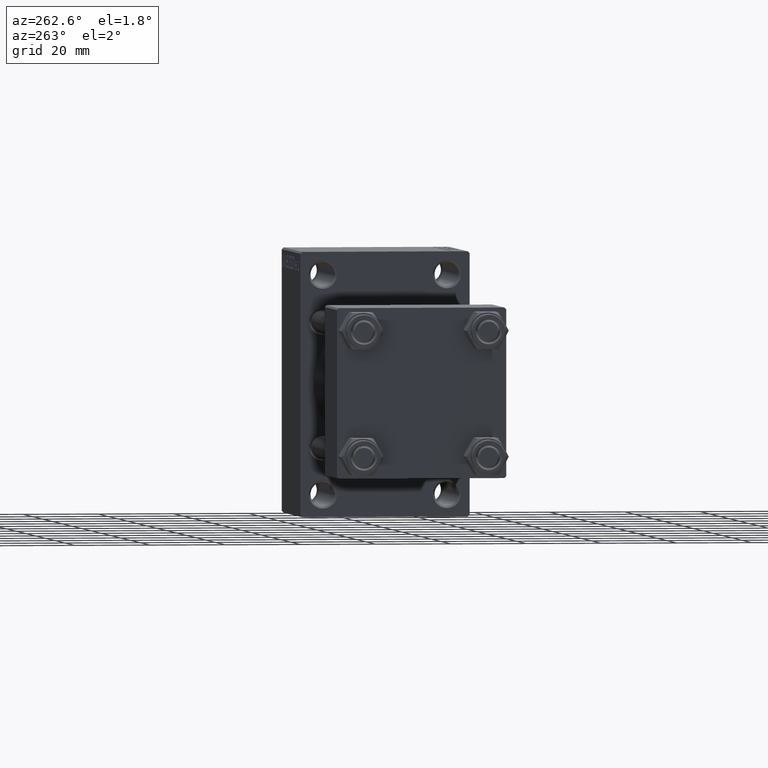
[diagram: clean part render]
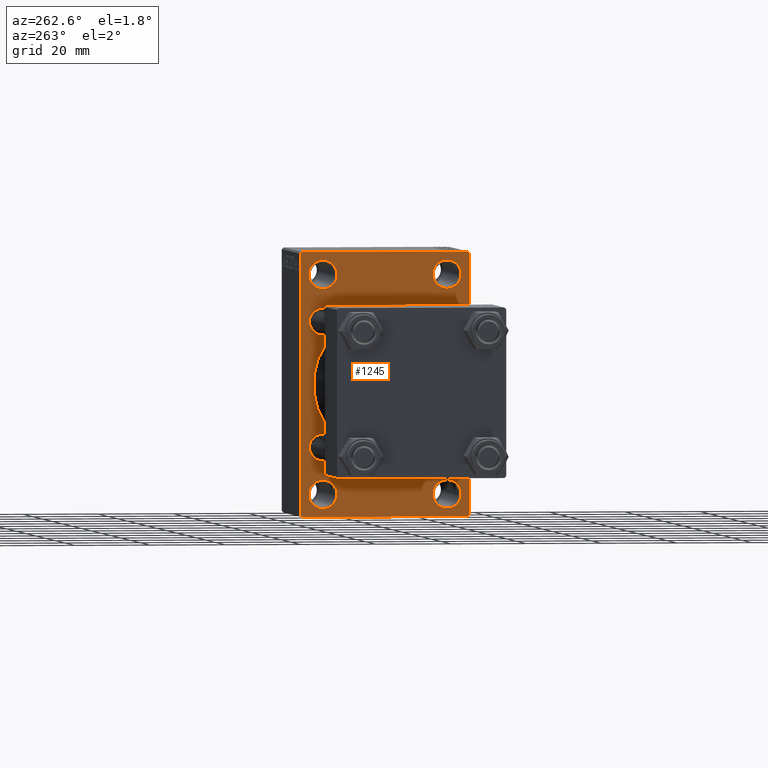
[diagram: same view with one face highlighted and labeled with its STEP entity id]
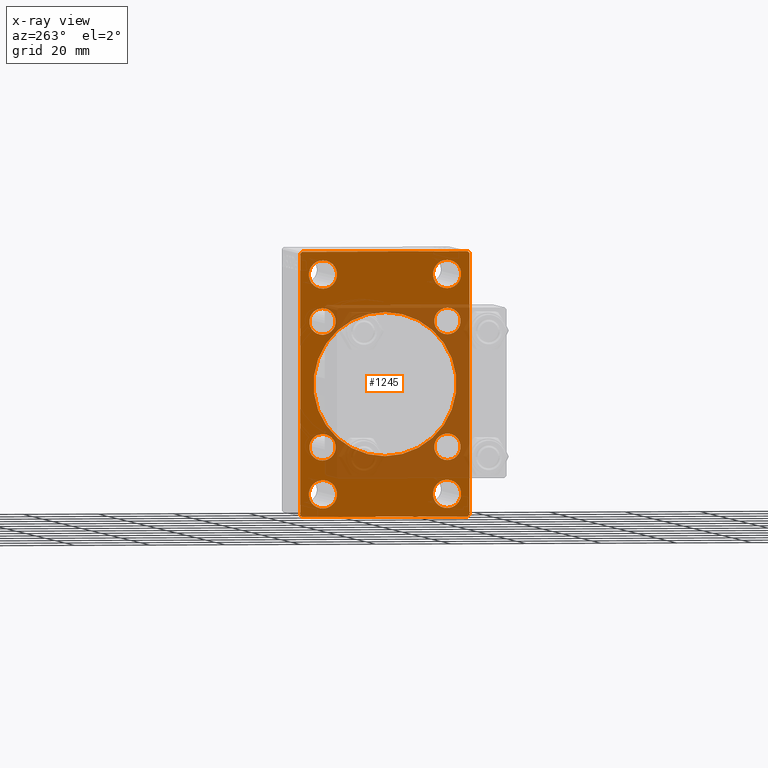
[diagram: x-ray of the same camera — body ghosted, the highlighted face saturated]
A machine part, auxiliary view. The second image highlights one B-rep face of the part: STEP entity #1245.
The next image is the same camera in x-ray: the body ghosted, the highlighted face saturated — about 34% of this face is hidden behind the body in this view.
In plain terms, the highlighted planar face has unit normal (-1, 0, 0).
Its self-contained STEP definition (entity closure, byte-faithful):
#228 = CARTESIAN_POINT ( 'NONE',  ( 75.00000000000001421, 16.59999999999999787, 20.10000000000001208 ) ) ;
#264 = DIRECTION ( 'NONE',  ( -0.000000000000000000, -0.7071067811865474617, -0.7071067811865474617 ) ) ;
#266 = CARTESIAN_POINT ( 'NONE',  ( 75.00000000000001421, 16.50000000000000000, -28.99999999999999289 ) ) ;
#598 = DIRECTION ( 'NONE',  ( 0.000000000000000000, -1.000000000000000000, 0.000000000000000000 ) ) ;
#811 = ORIENTED_EDGE ( 'NONE', *, *, #3613, .T. ) ;
#905 = AXIS2_PLACEMENT_3D ( 'NONE', #1451, #16111, #41896 ) ;
#1245 = ADVANCED_FACE ( 'NONE', ( #13981, #25061, #6762, #21441, #36151, #27950, #32521, #16860, #32036, #47203 ), #28909, .T. ) ;
#1375 = AXIS2_PLACEMENT_3D ( 'NONE', #19363, #14806, #26363 ) ;
#1451 = CARTESIAN_POINT ( 'NONE',  ( 75.00000000000001421, -16.50000000000000000, 29.00000000000000711 ) ) ;
#1628 = LINE ( 'NONE', #1857, #8625 ) ;
#1831 = DIRECTION ( 'NONE',  ( 1.000000000000000000, 0.000000000000000000, 0.000000000000000000 ) ) ;
#1847 = CIRCLE ( 'NONE', #28751, 3.749999999999937383 ) ;
#1857 = CARTESIAN_POINT ( 'NONE',  ( 75.00000000000001421, 28.49999999999999645, 28.49999999999999645 ) ) ;
#2247 = DIRECTION ( 'NONE',  ( 0.000000000000000000, 0.000000000000000000, 1.000000000000000000 ) ) ;
#2356 = VERTEX_POINT ( 'NONE', #38904 ) ;
#2430 = CIRCLE ( 'NONE', #41663, 19.00000000000000000 ) ;
#2437 = DIRECTION ( 'NONE',  ( 0.000000000000000000, 0.000000000000000000, 1.000000000000000000 ) ) ;
#2486 = CARTESIAN_POINT ( 'NONE',  ( 75.00000000000001421, 22.49999999999999645, 35.00000000000000000 ) ) ;
#2604 = EDGE_CURVE ( 'NONE', #18570, #15373, #40581, .T. ) ;
#2770 = VECTOR ( 'NONE', #264, 1000.000000000000114 ) ;
#2883 = EDGE_CURVE ( 'NONE', #15996, #15651, #41465, .T. ) ;
#3613 = EDGE_CURVE ( 'NONE', #22118, #9912, #26305, .T. ) ;
#3680 = CIRCLE ( 'NONE', #1375, 3.500000000000006661 ) ;
#3916 = EDGE_CURVE ( 'NONE', #9912, #18570, #19242, .T. ) ;
#4127 = CARTESIAN_POINT ( 'NONE',  ( 75.00000000000001421, 22.49999999999999645, -34.50000000000000000 ) ) ;
#4261 = ORIENTED_EDGE ( 'NONE', *, *, #30023, .T. ) ;
#5100 = EDGE_CURVE ( 'NONE', #35024, #2356, #11280, .T. ) ;
#5238 = CARTESIAN_POINT ( 'NONE',  ( 75.00000000000001421, -16.59999999999999076, 13.10000000000000142 ) ) ;
#5247 = VERTEX_POINT ( 'NONE', #41260 ) ;
#5623 = CARTESIAN_POINT ( 'NONE',  ( 75.00000000000001421, 16.59999999999999787, -13.09999999999999787 ) ) ;
#6161 = DIRECTION ( 'NONE',  ( 1.000000000000000000, 0.000000000000000000, 0.000000000000000000 ) ) ;
#6168 = AXIS2_PLACEMENT_3D ( 'NONE', #16022, #30259, #44953 ) ;
#6762 = FACE_BOUND ( 'NONE', #11535, .T. ) ;
#7007 = AXIS2_PLACEMENT_3D ( 'NONE', #13489, #40009, #2437 ) ;
#7314 = EDGE_CURVE ( 'NONE', #45770, #16174, #3680, .T. ) ;
#7319 = EDGE_LOOP ( 'NONE', ( #18221, #23261 ) ) ;
#7339 = CARTESIAN_POINT ( 'NONE',  ( 75.00000000000001421, 16.50000000000000000, -32.74999999999992895 ) ) ;
#7740 = VERTEX_POINT ( 'NONE', #9181 ) ;
#7882 = EDGE_CURVE ( 'NONE', #43133, #26696, #26732, .T. ) ;
#8410 = DIRECTION ( 'NONE',  ( 0.000000000000000000, 0.000000000000000000, 1.000000000000000000 ) ) ;
#8625 = VECTOR ( 'NONE', #16521, 1000.000000000000114 ) ;
#9120 = DIRECTION ( 'NONE',  ( 1.000000000000000000, 0.000000000000000000, 0.000000000000000000 ) ) ;
#9181 = CARTESIAN_POINT ( 'NONE',  ( 75.00000000000001421, -22.50000000000000355, -34.49999999999997158 ) ) ;
#9197 = AXIS2_PLACEMENT_3D ( 'NONE', #36864, #14927, #37341 ) ;
#9912 = VERTEX_POINT ( 'NONE', #4127 ) ;
#10433 = DIRECTION ( 'NONE',  ( 0.000000000000000000, 0.000000000000000000, 1.000000000000000000 ) ) ;
#10655 = LINE ( 'NONE', #2486, #26418 ) ;
#11280 = CIRCLE ( 'NONE', #22056, 3.500000000000006661 ) ;
#11535 = EDGE_LOOP ( 'NONE', ( #34118, #28916 ) ) ;
#11565 = DIRECTION ( 'NONE',  ( 1.000000000000000000, 0.000000000000000000, 0.000000000000000000 ) ) ;
#11679 = ORIENTED_EDGE ( 'NONE', *, *, #19900, .T. ) ;
#11725 = ORIENTED_EDGE ( 'NONE', *, *, #30452, .T. ) ;
#11875 = ORIENTED_EDGE ( 'NONE', *, *, #7314, .T. ) ;
#11877 = CARTESIAN_POINT ( 'NONE',  ( 75.00000000000001421, -22.50000000000000355, 34.50000000000000000 ) ) ;
#12318 = DIRECTION ( 'NONE',  ( 0.000000000000000000, 0.000000000000000000, -1.000000000000000000 ) ) ;
#12769 = CARTESIAN_POINT ( 'NONE',  ( 75.00000000000001421, -22.50000000000000355, 35.00000000000000000 ) ) ;
#13263 = DIRECTION ( 'NONE',  ( -1.000000000000000000, 0.000000000000000000, -0.000000000000000000 ) ) ;
#13489 = CARTESIAN_POINT ( 'NONE',  ( 75.00000000000001421, 16.50000000000000000, -28.99999999999999289 ) ) ;
#13666 = CARTESIAN_POINT ( 'NONE',  ( 75.00000000000001421, -16.50000000000000000, -25.25000000000005684 ) ) ;
#13681 = ORIENTED_EDGE ( 'NONE', *, *, #28047, .T. ) ;
#13867 = DIRECTION ( 'NONE',  ( 0.000000000000000000, 0.000000000000000000, 1.000000000000000000 ) ) ;
#13897 = CIRCLE ( 'NONE', #7007, 3.749999999999937383 ) ;
#13981 = FACE_BOUND ( 'NONE', #35922, .T. ) ;
#14040 = DIRECTION ( 'NONE',  ( 1.000000000000000000, 0.000000000000000000, 0.000000000000000000 ) ) ;
#14484 = ORIENTED_EDGE ( 'NONE', *, *, #43226, .T. ) ;
#14560 = AXIS2_PLACEMENT_3D ( 'NONE', #45192, #41824, #16918 ) ;
#14806 = DIRECTION ( 'NONE',  ( 1.000000000000000000, 0.000000000000000000, 0.000000000000000000 ) ) ;
#14927 = DIRECTION ( 'NONE',  ( 1.000000000000000000, 0.000000000000000000, 0.000000000000000000 ) ) ;
#15057 = CARTESIAN_POINT ( 'NONE',  ( 75.00000000000001421, -16.59999999999999076, -20.10000000000001208 ) ) ;
#15360 = EDGE_CURVE ( 'NONE', #15373, #7740, #46605, .T. ) ;
#15373 = VERTEX_POINT ( 'NONE', #27836 ) ;
#15645 = CIRCLE ( 'NONE', #39528, 3.500000000000006661 ) ;
#15651 = VERTEX_POINT ( 'NONE', #41781 ) ;
#15831 = CARTESIAN_POINT ( 'NONE',  ( 75.00000000000001421, -2.752562955852396712E-16, -19.00000000000000000 ) ) ;
#15996 = VERTEX_POINT ( 'NONE', #11877 ) ;
#16022 = CARTESIAN_POINT ( 'NONE',  ( 75.00000000000001421, 16.50000000000000000, 29.00000000000000355 ) ) ;
#16111 = DIRECTION ( 'NONE',  ( 1.000000000000000000, 0.000000000000000000, 0.000000000000000000 ) ) ;
#16141 = VERTEX_POINT ( 'NONE', #21871 ) ;
#16174 = VERTEX_POINT ( 'NONE', #228 ) ;
#16190 = VERTEX_POINT ( 'NONE', #5238 ) ;
#16521 = DIRECTION ( 'NONE',  ( 0.000000000000000000, 0.7071067811865474617, -0.7071067811865474617 ) ) ;
#16739 = CIRCLE ( 'NONE', #43687, 3.500000000000006661 ) ;
#16799 = ORIENTED_EDGE ( 'NONE', *, *, #33806, .T. ) ;
#16824 = EDGE_LOOP ( 'NONE', ( #14484, #27433 ) ) ;
#16860 = FACE_BOUND ( 'NONE', #16824, .T. ) ;
#16918 = DIRECTION ( 'NONE',  ( 0.000000000000000000, 0.000000000000000000, 1.000000000000000000 ) ) ;
#17146 = CARTESIAN_POINT ( 'NONE',  ( 75.00000000000001421, -16.50000000000000000, -28.99999999999999289 ) ) ;
#17249 = ORIENTED_EDGE ( 'NONE', *, *, #25437, .T. ) ;
#17534 = EDGE_LOOP ( 'NONE', ( #16799, #11875 ) ) ;
#17703 = DIRECTION ( 'NONE',  ( 0.000000000000000000, 0.000000000000000000, -1.000000000000000000 ) ) ;
#18025 = VERTEX_POINT ( 'NONE', #46739 ) ;
#18221 = ORIENTED_EDGE ( 'NONE', *, *, #41376, .T. ) ;
#18566 = DIRECTION ( 'NONE',  ( 1.000000000000000000, 0.000000000000000000, 0.000000000000000000 ) ) ;
#18570 = VERTEX_POINT ( 'NONE', #34642 ) ;
#18730 = VERTEX_POINT ( 'NONE', #15831 ) ;
#18873 = CARTESIAN_POINT ( 'NONE',  ( 75.00000000000001421, 22.49999999999999645, -35.00000000000000000 ) ) ;
#18929 = CARTESIAN_POINT ( 'NONE',  ( 75.00000000000001421, -16.50000000000000000, 32.74999999999993605 ) ) ;
#19242 = LINE ( 'NONE', #29623, #2770 ) ;
#19271 = ORIENTED_EDGE ( 'NONE', *, *, #41290, .T. ) ;
#19363 = CARTESIAN_POINT ( 'NONE',  ( 75.00000000000001421, 16.59999999999999787, 16.60000000000000497 ) ) ;
#19609 = VECTOR ( 'NONE', #598, 1000.000000000000000 ) ;
#19900 = EDGE_CURVE ( 'NONE', #18025, #18730, #27443, .T. ) ;
#20322 = DIRECTION ( 'NONE',  ( 0.000000000000000000, 0.000000000000000000, 1.000000000000000000 ) ) ;
#20421 = VECTOR ( 'NONE', #41006, 1000.000000000000000 ) ;
#20529 = DIRECTION ( 'NONE',  ( 1.000000000000000000, 0.000000000000000000, 0.000000000000000000 ) ) ;
#20536 = EDGE_CURVE ( 'NONE', #15996, #7740, #26757, .T. ) ;
#20770 = CIRCLE ( 'NONE', #6168, 3.749999999999933831 ) ;
#21027 = CARTESIAN_POINT ( 'NONE',  ( 75.00000000000001421, -16.59999999999999076, -16.60000000000000853 ) ) ;
#21441 = FACE_BOUND ( 'NONE', #33577, .T. ) ;
#21871 = CARTESIAN_POINT ( 'NONE',  ( 75.00000000000001421, 16.50000000000000000, 32.74999999999992895 ) ) ;
#22021 = EDGE_CURVE ( 'NONE', #5247, #24911, #16739, .T. ) ;
#22056 = AXIS2_PLACEMENT_3D ( 'NONE', #21027, #35738, #20322 ) ;
#22118 = VERTEX_POINT ( 'NONE', #25906 ) ;
#22394 = DIRECTION ( 'NONE',  ( 1.000000000000000000, 0.000000000000000000, 0.000000000000000000 ) ) ;
#22764 = VERTEX_POINT ( 'NONE', #43867 ) ;
#23261 = ORIENTED_EDGE ( 'NONE', *, *, #7882, .T. ) ;
#23911 = CARTESIAN_POINT ( 'NONE',  ( 75.00000000000001421, 16.59999999999999787, -16.60000000000000497 ) ) ;
#24140 = VERTEX_POINT ( 'NONE', #42683 ) ;
#24911 = VERTEX_POINT ( 'NONE', #5623 ) ;
#25061 = FACE_BOUND ( 'NONE', #7319, .T. ) ;
#25185 = DIRECTION ( 'NONE',  ( 1.000000000000000000, 0.000000000000000000, 0.000000000000000000 ) ) ;
#25360 = CIRCLE ( 'NONE', #9197, 3.500000000000003109 ) ;
#25437 = EDGE_CURVE ( 'NONE', #37837, #16190, #25360, .T. ) ;
#25532 = DIRECTION ( 'NONE',  ( 0.000000000000000000, 0.000000000000000000, 1.000000000000000000 ) ) ;
#25665 = CARTESIAN_POINT ( 'NONE',  ( 75.00000000000001421, 16.59999999999999787, 16.60000000000000497 ) ) ;
#25751 = AXIS2_PLACEMENT_3D ( 'NONE', #31569, #13263, #42643 ) ;
#25906 = CARTESIAN_POINT ( 'NONE',  ( 75.00000000000001421, 22.49999999999999645, 34.50000000000000000 ) ) ;
#26033 = DIRECTION ( 'NONE',  ( 0.000000000000000000, 0.000000000000000000, 1.000000000000000000 ) ) ;
#26305 = LINE ( 'NONE', #34240, #20421 ) ;
#26363 = DIRECTION ( 'NONE',  ( 0.000000000000000000, 0.000000000000000000, 1.000000000000000000 ) ) ;
#26418 = VECTOR ( 'NONE', #40060, 1000.000000000000000 ) ;
#26491 = CIRCLE ( 'NONE', #30335, 3.500000000000006661 ) ;
#26696 = VERTEX_POINT ( 'NONE', #13666 ) ;
#26703 = CARTESIAN_POINT ( 'NONE',  ( 75.00000000000001421, -16.50000000000000000, 29.00000000000000711 ) ) ;
#26732 = CIRCLE ( 'NONE', #42097, 3.749999999999937383 ) ;
#26757 = LINE ( 'NONE', #12769, #31334 ) ;
#27199 = AXIS2_PLACEMENT_3D ( 'NONE', #17146, #31846, #43413 ) ;
#27433 = ORIENTED_EDGE ( 'NONE', *, *, #5100, .T. ) ;
#27443 = CIRCLE ( 'NONE', #35158, 19.00000000000000000 ) ;
#27594 = DIRECTION ( 'NONE',  ( 0.000000000000000000, -0.7071067811865376918, 0.7071067811865574537 ) ) ;
#27610 = CIRCLE ( 'NONE', #14560, 3.500000000000003109 ) ;
#27836 = CARTESIAN_POINT ( 'NONE',  ( 75.00000000000001421, -21.99999999999997513, -35.00000000000000000 ) ) ;
#27950 = FACE_BOUND ( 'NONE', #17534, .T. ) ;
#28047 = EDGE_CURVE ( 'NONE', #16190, #37837, #27610, .T. ) ;
#28199 = EDGE_LOOP ( 'NONE', ( #17249, #13681 ) ) ;
#28436 = CIRCLE ( 'NONE', #40817, 3.749999999999930278 ) ;
#28543 = CIRCLE ( 'NONE', #905, 3.749999999999930278 ) ;
#28732 = CARTESIAN_POINT ( 'NONE',  ( 75.00000000000001421, -16.59999999999999076, -16.60000000000000853 ) ) ;
#28751 = AXIS2_PLACEMENT_3D ( 'NONE', #266, #22394, #25532 ) ;
#28909 = PLANE ( 'NONE',  #25751 ) ;
#28916 = ORIENTED_EDGE ( 'NONE', *, *, #38680, .T. ) ;
#29283 = DIRECTION ( 'NONE',  ( 0.000000000000000000, 0.000000000000000000, 1.000000000000000000 ) ) ;
#29623 = CARTESIAN_POINT ( 'NONE',  ( 75.00000000000001421, 28.49999999999999645, -28.49999999999999645 ) ) ;
#30023 = EDGE_CURVE ( 'NONE', #16141, #24140, #20770, .T. ) ;
#30259 = DIRECTION ( 'NONE',  ( 1.000000000000000000, 0.000000000000000000, 0.000000000000000000 ) ) ;
#30335 = AXIS2_PLACEMENT_3D ( 'NONE', #28732, #14040, #10433 ) ;
#30452 = EDGE_CURVE ( 'NONE', #45223, #34052, #28436, .T. ) ;
#30811 = CARTESIAN_POINT ( 'NONE',  ( 75.00000000000001421, -16.50000000000000000, -28.99999999999999289 ) ) ;
#30927 = AXIS2_PLACEMENT_3D ( 'NONE', #25665, #40377, #29283 ) ;
#31334 = VECTOR ( 'NONE', #12318, 1000.000000000000000 ) ;
#31366 = CARTESIAN_POINT ( 'NONE',  ( 75.00000000000001421, -16.59999999999999076, 20.10000000000001208 ) ) ;
#31569 = CARTESIAN_POINT ( 'NONE',  ( 75.00000000000001421, 0.000000000000000000, 0.000000000000000000 ) ) ;
#31846 = DIRECTION ( 'NONE',  ( 1.000000000000000000, 0.000000000000000000, 0.000000000000000000 ) ) ;
#32036 = FACE_BOUND ( 'NONE', #37772, .T. ) ;
#32315 = EDGE_CURVE ( 'NONE', #22764, #37593, #13897, .T. ) ;
#32521 = FACE_BOUND ( 'NONE', #36668, .T. ) ;
#32886 = EDGE_CURVE ( 'NONE', #18730, #18025, #2430, .T. ) ;
#33498 = EDGE_CURVE ( 'NONE', #34052, #45223, #28543, .T. ) ;
#33577 = EDGE_LOOP ( 'NONE', ( #4261, #39453 ) ) ;
#33709 = EDGE_CURVE ( 'NONE', #34602, #22118, #1628, .T. ) ;
#33806 = EDGE_CURVE ( 'NONE', #16174, #45770, #39400, .T. ) ;
#34052 = VERTEX_POINT ( 'NONE', #36219 ) ;
#34118 = ORIENTED_EDGE ( 'NONE', *, *, #32315, .T. ) ;
#34240 = CARTESIAN_POINT ( 'NONE',  ( 75.00000000000001421, 22.49999999999999645, 35.00000000000000000 ) ) ;
#34272 = VECTOR ( 'NONE', #37616, 1000.000000000000114 ) ;
#34602 = VERTEX_POINT ( 'NONE', #39899 ) ;
#34642 = CARTESIAN_POINT ( 'NONE',  ( 75.00000000000001421, 21.99999999999999645, -35.00000000000000000 ) ) ;
#34794 = CARTESIAN_POINT ( 'NONE',  ( 75.00000000000001421, -16.50000000000000000, -32.74999999999992895 ) ) ;
#35024 = VERTEX_POINT ( 'NONE', #15057 ) ;
#35157 = ORIENTED_EDGE ( 'NONE', *, *, #41345, .F. ) ;
#35158 = AXIS2_PLACEMENT_3D ( 'NONE', #38440, #1831, #43223 ) ;
#35454 = ORIENTED_EDGE ( 'NONE', *, *, #22021, .T. ) ;
#35704 = EDGE_CURVE ( 'NONE', #24140, #16141, #40956, .T. ) ;
#35738 = DIRECTION ( 'NONE',  ( 1.000000000000000000, 0.000000000000000000, 0.000000000000000000 ) ) ;
#35922 = EDGE_LOOP ( 'NONE', ( #11725, #41094 ) ) ;
#36151 = FACE_BOUND ( 'NONE', #28199, .T. ) ;
#36170 = CARTESIAN_POINT ( 'NONE',  ( 75.00000000000001421, 16.50000000000000000, 29.00000000000000355 ) ) ;
#36219 = CARTESIAN_POINT ( 'NONE',  ( 75.00000000000001421, -16.50000000000000000, 25.25000000000007816 ) ) ;
#36668 = EDGE_LOOP ( 'NONE', ( #19271, #35454 ) ) ;
#36864 = CARTESIAN_POINT ( 'NONE',  ( 75.00000000000001421, -16.59999999999999076, 16.60000000000000853 ) ) ;
#37155 = CARTESIAN_POINT ( 'NONE',  ( 75.00000000000001421, -28.49999999999999645, 28.49999999999999645 ) ) ;
#37341 = DIRECTION ( 'NONE',  ( 0.000000000000000000, 0.000000000000000000, 1.000000000000000000 ) ) ;
#37593 = VERTEX_POINT ( 'NONE', #7339 ) ;
#37616 = DIRECTION ( 'NONE',  ( -0.000000000000000000, 0.7071067811865474617, 0.7071067811865474617 ) ) ;
#37618 = CARTESIAN_POINT ( 'NONE',  ( 75.00000000000001421, 16.59999999999999787, 13.09999999999999609 ) ) ;
#37772 = EDGE_LOOP ( 'NONE', ( #11679, #45123 ) ) ;
#37837 = VERTEX_POINT ( 'NONE', #31366 ) ;
#38391 = VECTOR ( 'NONE', #27594, 999.9999999999998863 ) ;
#38440 = CARTESIAN_POINT ( 'NONE',  ( 75.00000000000001421, -2.602085213965210642E-15, 0.000000000000000000 ) ) ;
#38680 = EDGE_CURVE ( 'NONE', #37593, #22764, #1847, .T. ) ;
#38904 = CARTESIAN_POINT ( 'NONE',  ( 75.00000000000001421, -16.59999999999999076, -13.10000000000000142 ) ) ;
#39400 = CIRCLE ( 'NONE', #30927, 3.500000000000006661 ) ;
#39453 = ORIENTED_EDGE ( 'NONE', *, *, #35704, .T. ) ;
#39495 = CIRCLE ( 'NONE', #27199, 3.749999999999937383 ) ;
#39528 = AXIS2_PLACEMENT_3D ( 'NONE', #23911, #20529, #2247 ) ;
#39646 = CARTESIAN_POINT ( 'NONE',  ( 75.00000000000001421, -2.602085213965210642E-15, 0.000000000000000000 ) ) ;
#39658 = CARTESIAN_POINT ( 'NONE',  ( 75.00000000000001421, 16.59999999999999787, -16.60000000000000497 ) ) ;
#39899 = CARTESIAN_POINT ( 'NONE',  ( 75.00000000000001421, 21.99999999999999645, 35.00000000000000000 ) ) ;
#40009 = DIRECTION ( 'NONE',  ( 1.000000000000000000, 0.000000000000000000, 0.000000000000000000 ) ) ;
#40060 = DIRECTION ( 'NONE',  ( 0.000000000000000000, -1.000000000000000000, 0.000000000000000000 ) ) ;
#40377 = DIRECTION ( 'NONE',  ( 1.000000000000000000, 0.000000000000000000, 0.000000000000000000 ) ) ;
#40581 = LINE ( 'NONE', #18873, #19609 ) ;
#40817 = AXIS2_PLACEMENT_3D ( 'NONE', #26703, #11565, #8410 ) ;
#40915 = ORIENTED_EDGE ( 'NONE', *, *, #2604, .T. ) ;
#40956 = CIRCLE ( 'NONE', #47069, 3.749999999999933831 ) ;
#41006 = DIRECTION ( 'NONE',  ( 0.000000000000000000, 0.000000000000000000, -1.000000000000000000 ) ) ;
#41094 = ORIENTED_EDGE ( 'NONE', *, *, #33498, .T. ) ;
#41260 = CARTESIAN_POINT ( 'NONE',  ( 75.00000000000001421, 16.59999999999999787, -20.10000000000000853 ) ) ;
#41290 = EDGE_CURVE ( 'NONE', #24911, #5247, #15645, .T. ) ;
#41345 = EDGE_CURVE ( 'NONE', #34602, #15651, #10655, .T. ) ;
#41353 = EDGE_LOOP ( 'NONE', ( #40915, #45519, #45568, #45074, #35157, #46762, #811, #47241 ) ) ;
#41376 = EDGE_CURVE ( 'NONE', #26696, #43133, #39495, .T. ) ;
#41465 = LINE ( 'NONE', #37155, #34272 ) ;
#41657 = DIRECTION ( 'NONE',  ( 0.000000000000000000, 0.000000000000000000, 1.000000000000000000 ) ) ;
#41663 = AXIS2_PLACEMENT_3D ( 'NONE', #39646, #6161, #17703 ) ;
#41781 = CARTESIAN_POINT ( 'NONE',  ( 75.00000000000001421, -21.99999999999998934, 35.00000000000000000 ) ) ;
#41824 = DIRECTION ( 'NONE',  ( 1.000000000000000000, 0.000000000000000000, 0.000000000000000000 ) ) ;
#41896 = DIRECTION ( 'NONE',  ( 0.000000000000000000, 0.000000000000000000, 1.000000000000000000 ) ) ;
#42097 = AXIS2_PLACEMENT_3D ( 'NONE', #30811, #9120, #41657 ) ;
#42643 = DIRECTION ( 'NONE',  ( -0.000000000000000000, 0.000000000000000000, 1.000000000000000000 ) ) ;
#42683 = CARTESIAN_POINT ( 'NONE',  ( 75.00000000000001421, 16.50000000000000000, 25.25000000000007461 ) ) ;
#43133 = VERTEX_POINT ( 'NONE', #34794 ) ;
#43223 = DIRECTION ( 'NONE',  ( 0.000000000000000000, 0.000000000000000000, -1.000000000000000000 ) ) ;
#43226 = EDGE_CURVE ( 'NONE', #2356, #35024, #26491, .T. ) ;
#43413 = DIRECTION ( 'NONE',  ( 0.000000000000000000, 0.000000000000000000, 1.000000000000000000 ) ) ;
#43687 = AXIS2_PLACEMENT_3D ( 'NONE', #39658, #25185, #13867 ) ;
#43867 = CARTESIAN_POINT ( 'NONE',  ( 75.00000000000001421, 16.50000000000000000, -25.25000000000005684 ) ) ;
#44953 = DIRECTION ( 'NONE',  ( 0.000000000000000000, 0.000000000000000000, 1.000000000000000000 ) ) ;
#45074 = ORIENTED_EDGE ( 'NONE', *, *, #2883, .T. ) ;
#45123 = ORIENTED_EDGE ( 'NONE', *, *, #32886, .T. ) ;
#45192 = CARTESIAN_POINT ( 'NONE',  ( 75.00000000000001421, -16.59999999999999076, 16.60000000000000853 ) ) ;
#45223 = VERTEX_POINT ( 'NONE', #18929 ) ;
#45519 = ORIENTED_EDGE ( 'NONE', *, *, #15360, .T. ) ;
#45568 = ORIENTED_EDGE ( 'NONE', *, *, #20536, .F. ) ;
#45770 = VERTEX_POINT ( 'NONE', #37618 ) ;
#46145 = CARTESIAN_POINT ( 'NONE',  ( 75.00000000000001421, -28.50000000000030198, -28.49999999999951328 ) ) ;
#46605 = LINE ( 'NONE', #46145, #38391 ) ;
#46739 = CARTESIAN_POINT ( 'NONE',  ( 75.00000000000001421, -2.602085213965210642E-15, 19.00000000000000000 ) ) ;
#46762 = ORIENTED_EDGE ( 'NONE', *, *, #33709, .T. ) ;
#47069 = AXIS2_PLACEMENT_3D ( 'NONE', #36170, #18566, #26033 ) ;
#47203 = FACE_OUTER_BOUND ( 'NONE', #41353, .T. ) ;
#47241 = ORIENTED_EDGE ( 'NONE', *, *, #3916, .T. ) ;